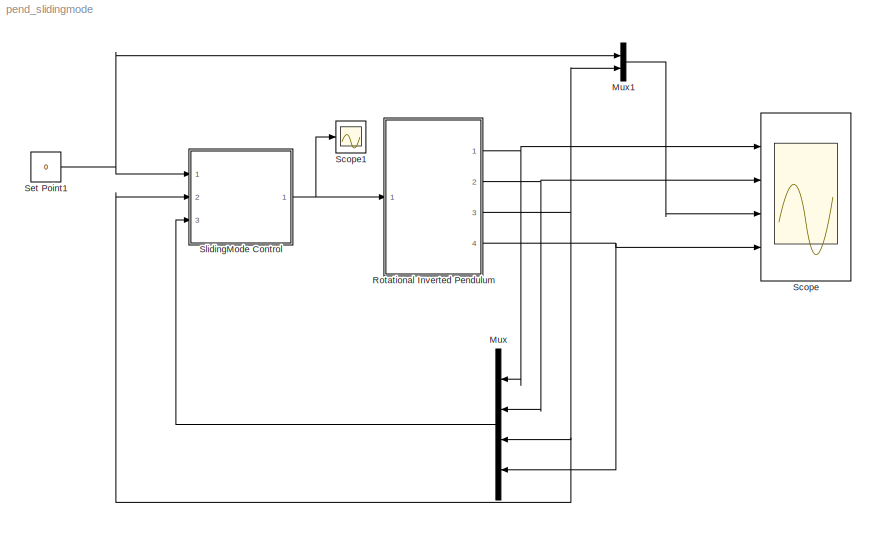
MODEL pend_slidingmode
KIND model
BLOCK [Mux] Mux
  DisplayOption = bar
  Ports = [4, 1]
  SID = 24
BLOCK [Mux] Mux1
  DisplayOption = bar
  Inputs = 2
  Ports = [2, 1]
  SID = 25
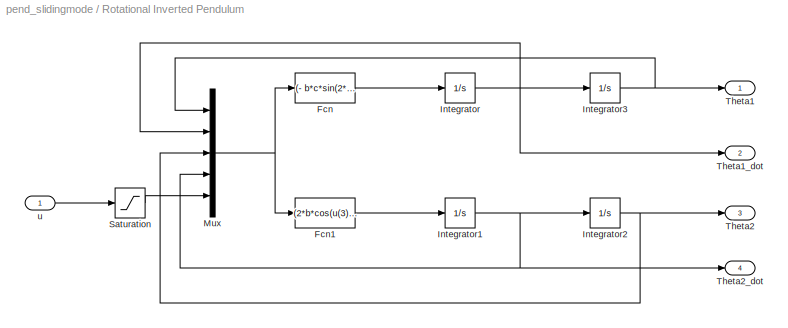
BLOCK [SubSystem] Rotational Inverted Pendulum
  Ports = [1, 4]
  RequestExecContextInheritance = off
  SID = 26
BLOCK [Fcn] Rotational Inverted Pendulum/Fcn
  Expr = (- b*c*sin(2* u(3))*cos(u(3))* u(2)^2 + 2*c*f*sin(2* u(3))* u(2)* u(4) + 2*d*f* u(2) + 2*b*f*sin(u(3))* u(4)^2 + 2*b*c2*cos(u(3))* u(4) - 2*e*f* u(5)- 2*b*h*cos(u(3))*sin(u(3)))/(b^2*cos(2* u(3)) - c*f - 2*a*f + b^2 + c*f*cos(2* u(3)))
  SID = 28
BLOCK [Fcn] Rotational Inverted Pendulum/Fcn1
  Expr = (2*b*cos(u(3))*(b*sin(u(3))*u(4)^2 + c*u(2)*sin(2*u(3))*u(4) + d*u(2) - e*u(5)))/(b^2*cos(2*u(3)) - c*f - 2*a*f + b^2 + c*f*cos(2*u(3))) - (((c*sin(2*u(3))*u(2)^2)/2 - c2*u(4) + h*sin(u(3)))*(2*a + c - c*cos(2*u(3))))/(b^2*cos(2*u(3)) - c*f - 2*a*f + b^2 + c*f*cos(2*u(3)))
  SID = 29
BLOCK [Integrator] Rotational Inverted Pendulum/Integrator
  Ports = [1, 1]
  SID = 30
BLOCK [Integrator] Rotational Inverted Pendulum/Integrator1
  Ports = [1, 1]
  SID = 31
BLOCK [Integrator] Rotational Inverted Pendulum/Integrator2
  InitialCondition = 15*pi/180
  Ports = [1, 1]
  SID = 32
BLOCK [Integrator] Rotational Inverted Pendulum/Integrator3
  Ports = [1, 1]
  SID = 33
BLOCK [Mux] Rotational Inverted Pendulum/Mux
  DisplayOption = bar
  Inputs = 5
  Ports = [5, 1]
  SID = 34
BLOCK [Saturate] Rotational Inverted Pendulum/Saturation
  InputPortMap = u0
  LowerLimit = -25
  Ports = [1, 1]
  SID = 35
  UpperLimit = 25
BLOCK [Outport] Rotational Inverted Pendulum/Theta1
  IconDisplay = Port number
  SID = 36
BLOCK [Outport] Rotational Inverted Pendulum/Theta1_dot
  IconDisplay = Port number
  Port = 2
  SID = 37
BLOCK [Outport] Rotational Inverted Pendulum/Theta2
  IconDisplay = Port number
  Port = 3
  SID = 38
BLOCK [Outport] Rotational Inverted Pendulum/Theta2_dot
  IconDisplay = Port number
  Port = 4
  SID = 39
BLOCK [Inport] Rotational Inverted Pendulum/u
  IconDisplay = Port number
  SID = 27
BLOCK [Scope] Scope
  Floating = off
  NumInputPorts = 4
  Ports = [4]
  SID = 40
  ScopeSpecificationString = Simulink.scopes.TimeScopeBlockCfg('CurrentConfiguration', extmgr.ConfigurationSet(extmgr.Configuration('Core','General UI',true,'FigureColor',[1 1 1]),extmgr.Configuration('Core','Source UI',true),extmgr.Configuration('Sources','WiredSimulink',true,'DataLogging',true,'DataLoggingSaveFormat','StructureWithTime','DataLoggingDecimation','1','DataLoggingDecimateData',true),extmgr.Configuration('Visual...<+4302ch>
BLOCK [Scope] Scope1
  Floating = off
  NumInputPorts = 1
  Ports = [1]
  SID = 95
  ScopeSpecificationString = C++SS(StrPVP('Location','[-125, 140, 1241, 813]'),StrPVP('Open','off'),MxPVP('AxesTitles',53,'struct(''axes1'',''%<SignalLabel>'')'),StrPVP('TimeRange','5'),StrPVP('YMin','-25'),StrPVP('YMax','25'),StrPVP('SaveToWorkspace','on'),StrPVP('SaveName','ScopeData1'),StrPVP('DataFormat','StructureWithTime'),StrPVP('LimitDataPoints','off'),StrPVP('BlockParamSampleTime','0'),StrPVP('Decimation','1'),StrPVP...<+32ch>
BLOCK [Constant] Set Point1
  SID = 80
  Value = 0
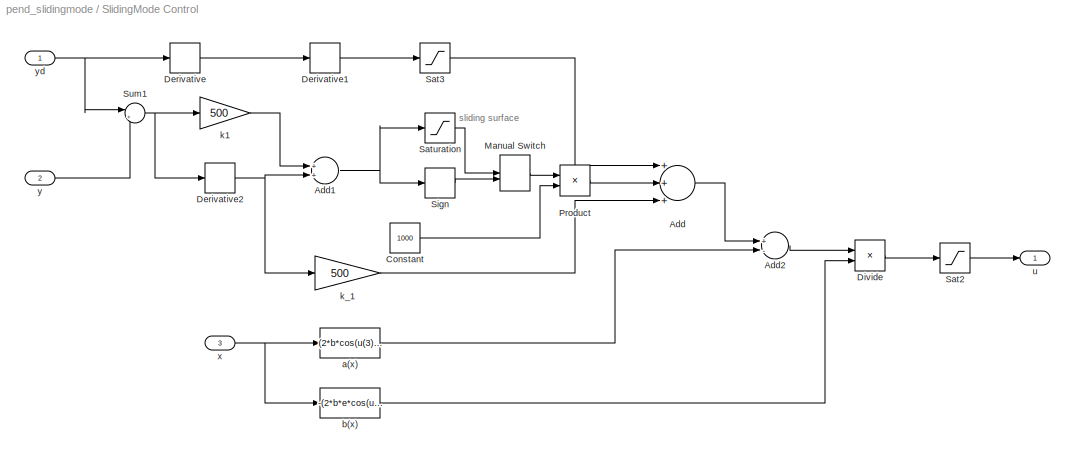
BLOCK [SubSystem] SlidingMode Control
  Ports = [3, 1]
  RequestExecContextInheritance = off
  SID = 53
BLOCK [Sum] SlidingMode Control/Add
  InputSameDT = off
  Inputs = +++
  OutDataTypeStr = Inherit: Inherit via internal rule
  Ports = [3, 1]
  SID = 70
  SaturateOnIntegerOverflow = off
BLOCK [Sum] SlidingMode Control/Add1
  InputSameDT = off
  OutDataTypeStr = Inherit: Inherit via internal rule
  Ports = [2, 1]
  SID = 71
  SaturateOnIntegerOverflow = off
BLOCK [Sum] SlidingMode Control/Add2
  InputSameDT = off
  Inputs = +-
  OutDataTypeStr = Inherit: Inherit via internal rule
  Ports = [2, 1]
  SID = 77
  SaturateOnIntegerOverflow = off
BLOCK [Constant] SlidingMode Control/Constant
  SID = 61
  Value = 1000
BLOCK [Derivative] SlidingMode Control/Derivative
  SID = 64
BLOCK [Derivative] SlidingMode Control/Derivative1
  SID = 65
BLOCK [Derivative] SlidingMode Control/Derivative2
  SID = 69
BLOCK [Product] SlidingMode Control/Divide
  InputSameDT = off
  Inputs = */
  OutDataTypeStr = Inherit: Inherit via internal rule
  Ports = [2, 1]
  RndMeth = Floor
  SID = 78
  SaturateOnIntegerOverflow = off
BLOCK [ManualSwitch] SlidingMode Control/Manual Switch
  SID = 100
BLOCK [Product] SlidingMode Control/Product
  InputSameDT = off
  OutDataTypeStr = Inherit: Inherit via internal rule
  Ports = [2, 1]
  SID = 62
  SaturateOnIntegerOverflow = off
BLOCK [Saturate] SlidingMode Control/Sat2
  InputPortMap = u0
  LowerLimit = -25
  Ports = [1, 1]
  SID = 96
  UpperLimit = 25
BLOCK [Saturate] SlidingMode Control/Sat3
  InputPortMap = u0
  LowerLimit = -25
  Ports = [1, 1]
  SID = 97
  UpperLimit = 25
BLOCK [Saturate] SlidingMode Control/Saturation
  InputPortMap = u0
  LowerLimit = -1
  Ports = [1, 1]
  SID = 98
  UpperLimit = 1
BLOCK [Signum] SlidingMode Control/Sign
  SID = 99
BLOCK [Sum] SlidingMode Control/Sum1
  IconShape = round
  InputSameDT = off
  Inputs = |+-
  OutDataTypeStr = Inherit: Inherit via internal rule
  Ports = [2, 1]
  SID = 67
  SaturateOnIntegerOverflow = off
BLOCK [Fcn] SlidingMode Control/a(x)
  Expr = (2*b*cos(u(3))*(b*sin(u(3))*u(4)^2 + c*u(2)*sin(2*u(3))*u(4) + d*u(2) - e*0))/(b^2*cos(2*u(3)) - c*f - 2*a*f + b^2 + c*f*cos(2*u(3))) - (((c*sin(2*u(3))*u(2)^2)/2 - c2*u(4) + h*sin(u(3)))*(2*a + c - c*cos(2*u(3))))/(b^2*cos(2*u(3)) - c*f - 2*a*f + b^2 + c*f*cos(2*u(3)))
  SID = 74
BLOCK [Fcn] SlidingMode Control/b(x)
  Expr = -(2*b*e*cos(u(3)))/(b^2*cos(2*u(3)) - c*f - 2*a*f + b^2 + c*f*cos(2*u(3)))
  SID = 75
BLOCK [Gain] SlidingMode Control/k1
  Gain = 500
  OutDataTypeStr = Inherit: Inherit via internal rule
  ParamDataTypeStr = Inherit: Inherit via internal rule
  SID = 68
  SaturateOnIntegerOverflow = off
BLOCK [Gain] SlidingMode Control/k_1
  Gain = 500
  OutDataTypeStr = Inherit: Inherit via internal rule
  ParamDataTypeStr = Inherit: Inherit via internal rule
  SID = 76
  SaturateOnIntegerOverflow = off
BLOCK [Outport] SlidingMode Control/u
  IconDisplay = Port number
  SID = 55
BLOCK [Inport] SlidingMode Control/x
  IconDisplay = Port number
  Port = 3
  SID = 73
BLOCK [Inport] SlidingMode Control/y
  IconDisplay = Port number
  Port = 2
  SID = 56
BLOCK [Inport] SlidingMode Control/yd
  IconDisplay = Port number
  SID = 54
ANNOTATION SlidingMode Control: sliding surface
LINE Mux1:1 -> Scope:3
LINE Mux:1 -> SlidingMode Control:3
LINE Rotational Inverted Pendulum/Fcn1:1 -> Rotational Inverted Pendulum/Integrator1:1
LINE Rotational Inverted Pendulum/Fcn:1 -> Rotational Inverted Pendulum/Integrator:1
NET Rotational Inverted Pendulum/Integrator1:1 -> Rotational Inverted Pendulum/Integrator2:1, Rotational Inverted Pendulum/Mux:4, Rotational Inverted Pendulum/Theta2_dot:1
NET Rotational Inverted Pendulum/Integrator2:1 -> Rotational Inverted Pendulum/Mux:3, Rotational Inverted Pendulum/Theta2:1
NET Rotational Inverted Pendulum/Integrator3:1 -> Rotational Inverted Pendulum/Mux:1, Rotational Inverted Pendulum/Theta1:1
NET Rotational Inverted Pendulum/Integrator:1 -> Rotational Inverted Pendulum/Integrator3:1, Rotational Inverted Pendulum/Mux:2, Rotational Inverted Pendulum/Theta1_dot:1
NET Rotational Inverted Pendulum/Mux:1 -> Rotational Inverted Pendulum/Fcn1:1, Rotational Inverted Pendulum/Fcn:1
LINE Rotational Inverted Pendulum/Saturation:1 -> Rotational Inverted Pendulum/Mux:5
LINE Rotational Inverted Pendulum/u:1 -> Rotational Inverted Pendulum/Saturation:1
NET Rotational Inverted Pendulum:1 -> Mux:1, Scope:1
NET Rotational Inverted Pendulum:2 -> Mux:2, Scope:2
NET Rotational Inverted Pendulum:3 -> Mux1:2, Mux:3, SlidingMode Control:2
NET Rotational Inverted Pendulum:4 -> Mux:4, Scope:4
NET Set Point1:1 -> Mux1:1, SlidingMode Control:1
NET SlidingMode Control/Add1:1 -> SlidingMode Control/Saturation:1, SlidingMode Control/Sign:1
LINE SlidingMode Control/Add2:1 -> SlidingMode Control/Divide:1
LINE SlidingMode Control/Add:1 -> SlidingMode Control/Add2:1
LINE SlidingMode Control/Constant:1 -> SlidingMode Control/Product:2
LINE SlidingMode Control/Derivative1:1 -> SlidingMode Control/Sat3:1
NET SlidingMode Control/Derivative2:1 -> SlidingMode Control/Add1:2, SlidingMode Control/k_1:1
LINE SlidingMode Control/Derivative:1 -> SlidingMode Control/Derivative1:1
LINE SlidingMode Control/Divide:1 -> SlidingMode Control/Sat2:1
LINE SlidingMode Control/Manual Switch:1 -> SlidingMode Control/Product:1
LINE SlidingMode Control/Product:1 -> SlidingMode Control/Add:2
LINE SlidingMode Control/Sat2:1 -> SlidingMode Control/u:1
LINE SlidingMode Control/Sat3:1 -> SlidingMode Control/Add:1
LINE SlidingMode Control/Saturation:1 -> SlidingMode Control/Manual Switch:1
LINE SlidingMode Control/Sign:1 -> SlidingMode Control/Manual Switch:2
NET SlidingMode Control/Sum1:1 -> SlidingMode Control/Derivative2:1, SlidingMode Control/k1:1
LINE SlidingMode Control/a(x):1 -> SlidingMode Control/Add2:2
LINE SlidingMode Control/b(x):1 -> SlidingMode Control/Divide:2
LINE SlidingMode Control/k1:1 -> SlidingMode Control/Add1:1
LINE SlidingMode Control/k_1:1 -> SlidingMode Control/Add:3
NET SlidingMode Control/x:1 -> SlidingMode Control/a(x):1, SlidingMode Control/b(x):1
LINE SlidingMode Control/y:1 -> SlidingMode Control/Sum1:2
NET SlidingMode Control/yd:1 -> SlidingMode Control/Derivative:1, SlidingMode Control/Sum1:1
NET SlidingMode Control:1 -> Rotational Inverted Pendulum:1, Scope1:1
note: NET lines group one-source signal fan-out (src -> all destinations, sorted); 1:1 wires keep LINE
